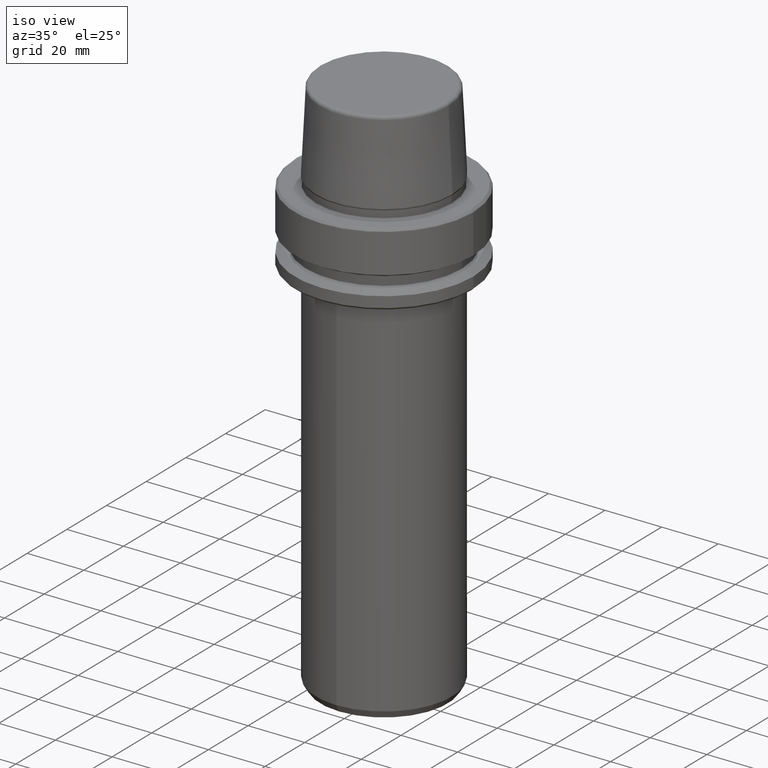
[diagram: clean part render]
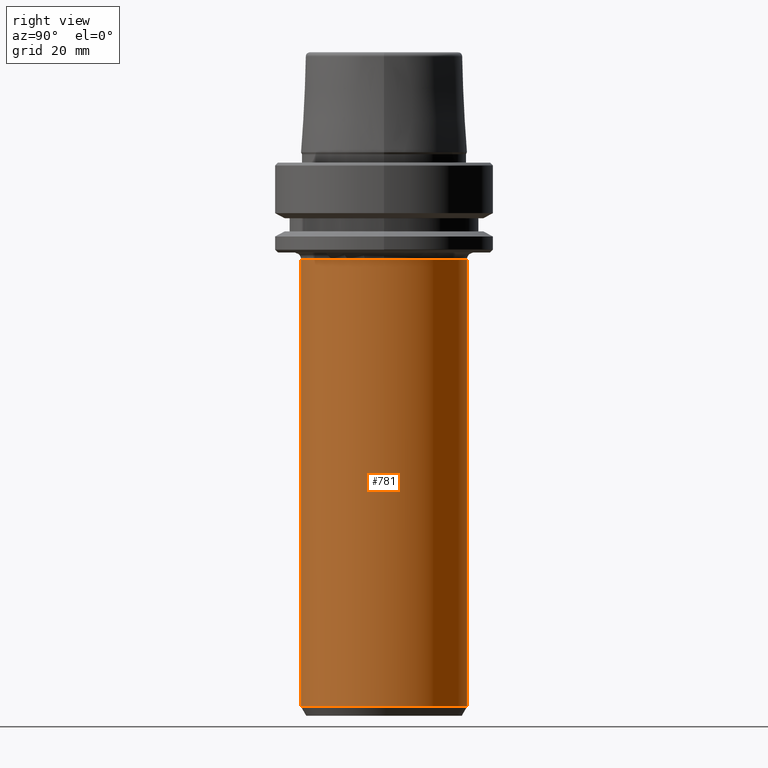
[diagram: tour spotlight — one face highlighted and labeled with its STEP entity id]
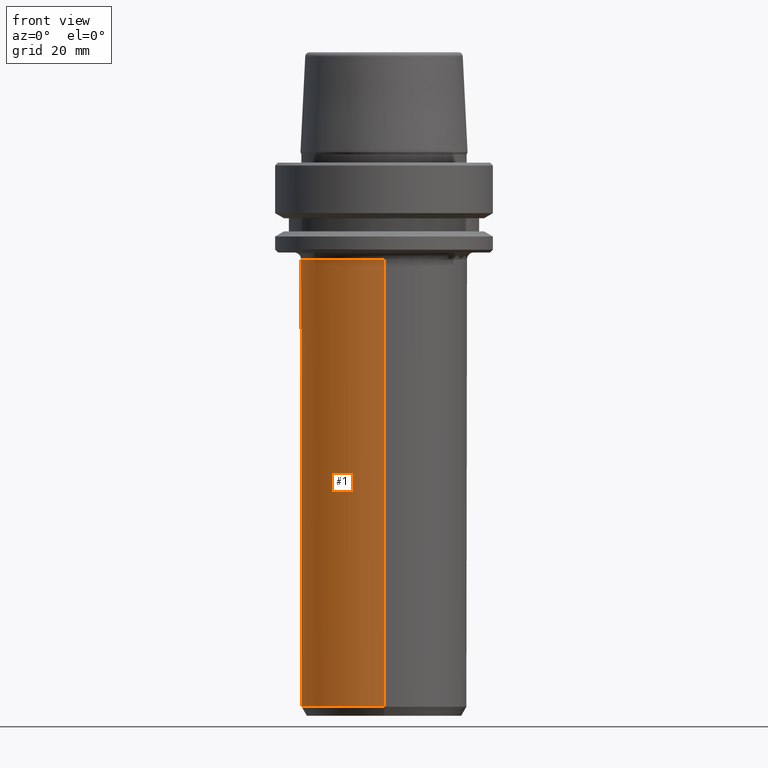
[diagram: tour spotlight — one face highlighted and labeled with its STEP entity id]
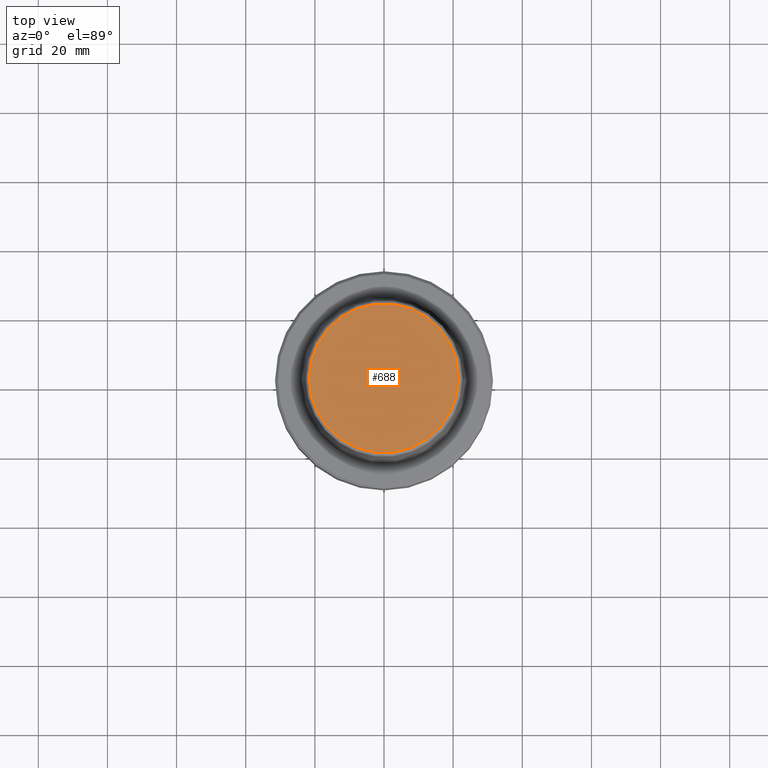
[diagram: tour spotlight — one face highlighted and labeled with its STEP entity id]
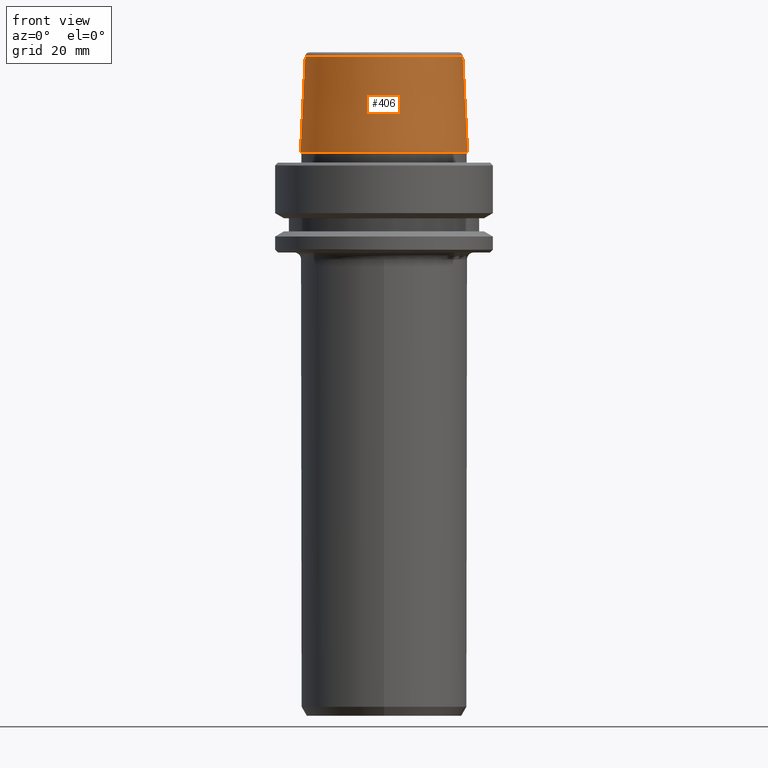
[diagram: tour spotlight — one face highlighted and labeled with its STEP entity id]
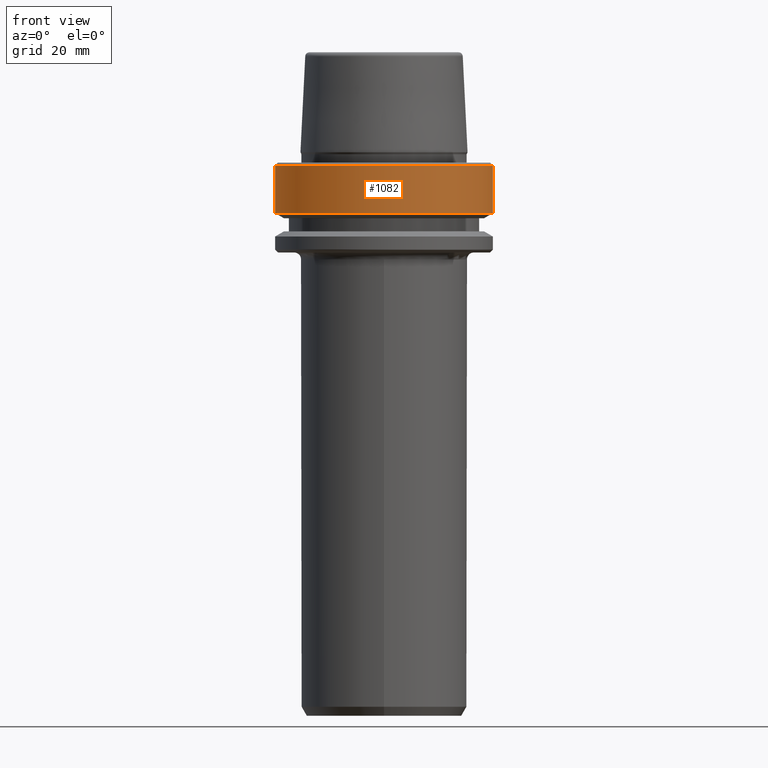
[diagram: tour spotlight — one face highlighted and labeled with its STEP entity id]
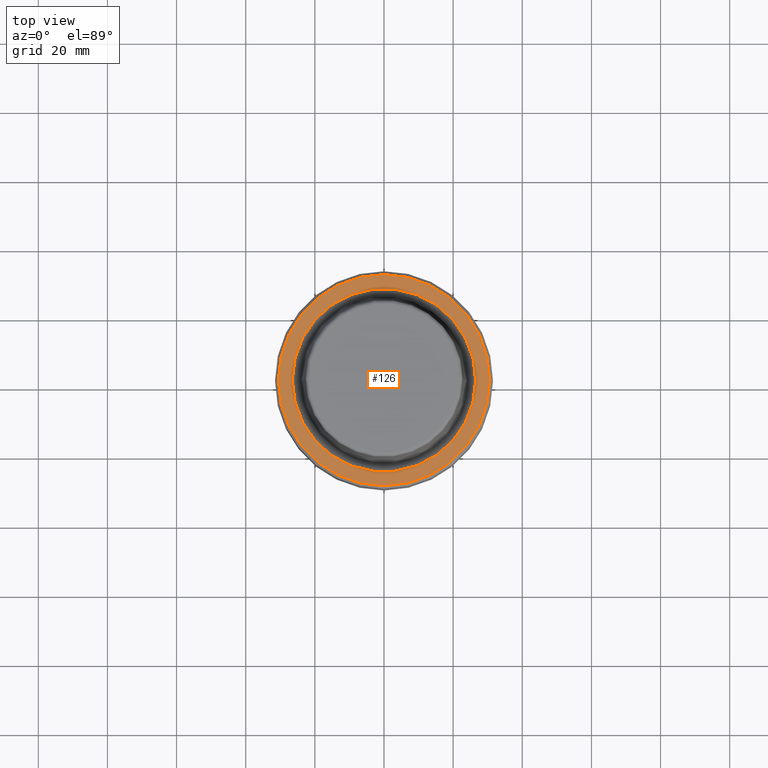
[diagram: tour spotlight — one face highlighted and labeled with its STEP entity id]
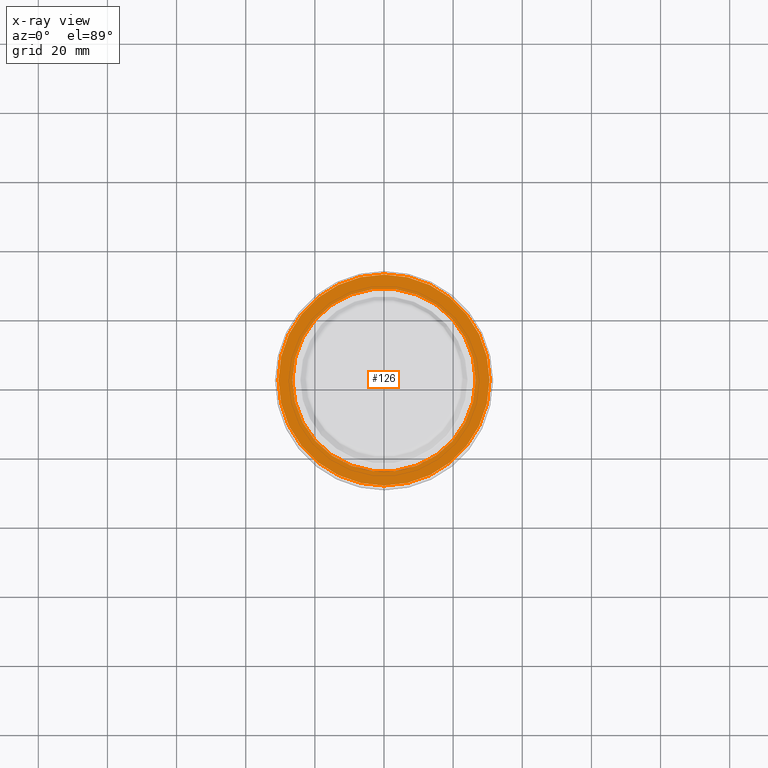
[diagram: x-ray of the same camera — body ghosted, this tour face saturated]
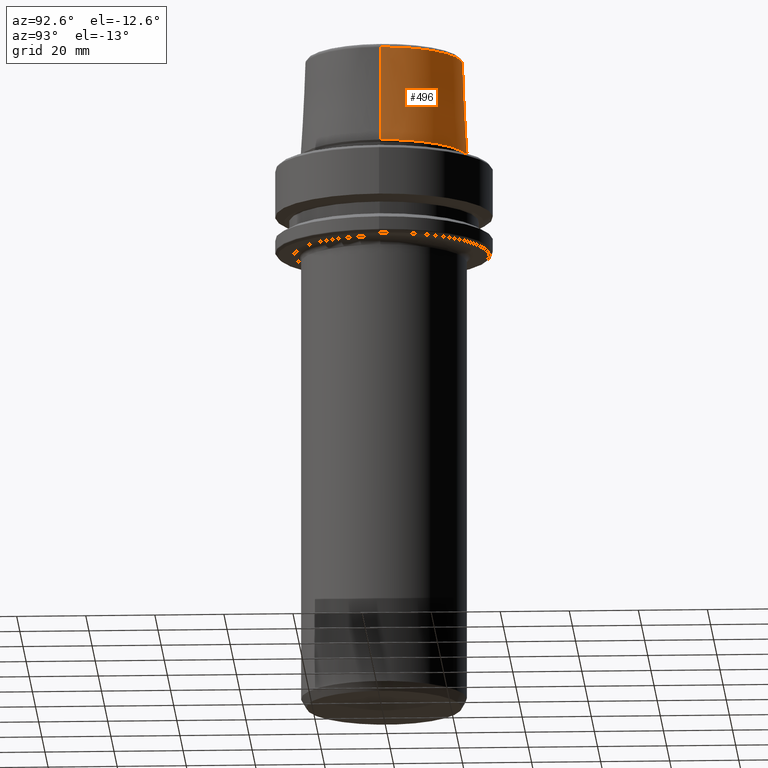
[diagram: tour spotlight — one face highlighted and labeled with its STEP entity id]
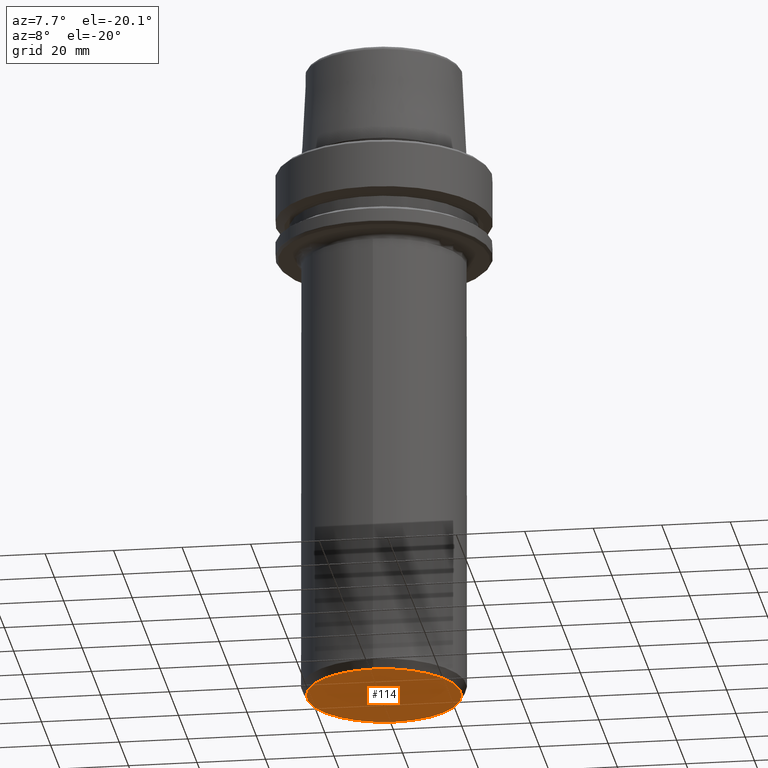
[diagram: tour spotlight — one face highlighted and labeled with its STEP entity id]
A machine part: a face-by-face anatomy tour. The part has 46 B-rep faces; the first image is the clean iso view, then the 8 largest visible faces are spotlighted one at a time (largest first), each with its STEP entity span.

Face 1 — right view, entity #781. In plain terms, the highlighted cylindrical surface (partial cylindrical patch) has radius 24 mm, axis along (-0, 0, -1).
Definition (entity closure, byte-faithful):
#23 = CYLINDRICAL_SURFACE ( 'NONE', #967, 24.00000000000000000 ) ;
#82 = EDGE_CURVE ( 'NONE', #167, #835, #1164, .T. ) ;
#150 = CARTESIAN_POINT ( 'NONE',  ( 0.0000000000000000000, 4.569577608758799000E-017, -27.99999999999999600 ) ) ;
#167 = VERTEX_POINT ( 'NONE', #551 ) ;
#171 = DIRECTION ( 'NONE',  ( 0.0000000000000000000, 1.000000000000000000, 0.0000000000000000000 ) ) ;
#187 = CARTESIAN_POINT ( 'NONE',  ( 24.00000000000000000, 4.569577608758799000E-017, -27.99999999999999600 ) ) ;
#271 = DIRECTION ( 'NONE',  ( 1.000000000000000000, 0.0000000000000000000, 0.0000000000000000000 ) ) ;
#278 = CIRCLE ( 'NONE', #346, 24.00000000000000000 ) ;
#336 = CIRCLE ( 'NONE', #809, 24.00000000000000000 ) ;
#346 = AXIS2_PLACEMENT_3D ( 'NONE', #502, #1006, #271 ) ;
#352 = CARTESIAN_POINT ( 'NONE',  ( 2.939152317953647900E-015, -23.99999999999999600, -160.0000000000000000 ) ) ;
#365 = EDGE_CURVE ( 'NONE', #625, #823, #336, .T. ) ;
#390 = LINE ( 'NONE', #352, #1143 ) ;
#412 = ORIENTED_EDGE ( 'NONE', *, *, #667, .T. ) ;
#432 = VECTOR ( 'NONE', #441, 1000.000000000000000 ) ;
#441 = DIRECTION ( 'NONE',  ( -0.0000000000000000000, 2.284788804379389600E-017, -1.000000000000000000 ) ) ;
#475 = ORIENTED_EDGE ( 'NONE', *, *, #820, .T. ) ;
#502 = CARTESIAN_POINT ( 'NONE',  ( 0.0000000000000000000, 4.569577608758799000E-017, -27.99999999999999600 ) ) ;
#551 = CARTESIAN_POINT ( 'NONE',  ( 2.939152317953647500E-015, 24.00000000000000000, -157.4019237886466800 ) ) ;
#603 = ORIENTED_EDGE ( 'NONE', *, *, #82, .F. ) ;
#625 = VERTEX_POINT ( 'NONE', #187 ) ;
#632 = CARTESIAN_POINT ( 'NONE',  ( 0.0000000000000000000, -23.99999999999999300, -157.4019237886466800 ) ) ;
#667 = EDGE_CURVE ( 'NONE', #1178, #625, #278, .T. ) ;
#671 = DIRECTION ( 'NONE',  ( 0.0000000000000000000, 1.000000000000000000, 0.0000000000000000000 ) ) ;
#684 = LINE ( 'NONE', #819, #432 ) ;
#693 = ORIENTED_EDGE ( 'NONE', *, *, #365, .T. ) ;
#714 = CARTESIAN_POINT ( 'NONE',  ( 0.0000000000000000000, 24.00000000000000000, -27.99999999999999600 ) ) ;
#721 = CARTESIAN_POINT ( 'NONE',  ( 2.939152317953647900E-015, -24.00000000000000000, -27.99999999999999600 ) ) ;
#733 = CARTESIAN_POINT ( 'NONE',  ( 0.0000000000000000000, 3.061616997868382300E-015, -160.0000000000000000 ) ) ;
#781 = ADVANCED_FACE ( 'NONE', ( #800 ), #23, .T. ) ;
#800 = FACE_OUTER_BOUND ( 'NONE', #1262, .T. ) ;
#809 = AXIS2_PLACEMENT_3D ( 'NONE', #150, #1033, #834 ) ;
#819 = CARTESIAN_POINT ( 'NONE',  ( 0.0000000000000000000, 24.00000000000000400, -160.0000000000000000 ) ) ;
#820 = EDGE_CURVE ( 'NONE', #823, #835, #390, .T. ) ;
#823 = VERTEX_POINT ( 'NONE', #721 ) ;
#834 = DIRECTION ( 'NONE',  ( 1.000000000000000000, 0.0000000000000000000, 0.0000000000000000000 ) ) ;
#835 = VERTEX_POINT ( 'NONE', #632 ) ;
#936 = ORIENTED_EDGE ( 'NONE', *, *, #1179, .F. ) ;
#940 = DIRECTION ( 'NONE',  ( -0.0000000000000000000, 2.284788804379389600E-017, -1.000000000000000000 ) ) ;
#967 = AXIS2_PLACEMENT_3D ( 'NONE', #733, #1142, #171 ) ;
#1006 = DIRECTION ( 'NONE',  ( 0.0000000000000000000, 0.0000000000000000000, -1.000000000000000000 ) ) ;
#1019 = DIRECTION ( 'NONE',  ( -0.0000000000000000000, 2.284788804379389600E-017, -1.000000000000000000 ) ) ;
#1033 = DIRECTION ( 'NONE',  ( 0.0000000000000000000, 0.0000000000000000000, -1.000000000000000000 ) ) ;
#1060 = CARTESIAN_POINT ( 'NONE',  ( 0.0000000000000000000, 3.002256443462137200E-015, -157.4019237886466800 ) ) ;
#1138 = AXIS2_PLACEMENT_3D ( 'NONE', #1060, #940, #671 ) ;
#1142 = DIRECTION ( 'NONE',  ( -0.0000000000000000000, 2.284788804379389600E-017, -1.000000000000000000 ) ) ;
#1143 = VECTOR ( 'NONE', #1019, 1000.000000000000000 ) ;
#1164 = CIRCLE ( 'NONE', #1138, 23.99999999999999600 ) ;
#1178 = VERTEX_POINT ( 'NONE', #714 ) ;
#1179 = EDGE_CURVE ( 'NONE', #1178, #167, #684, .T. ) ;
#1262 = EDGE_LOOP ( 'NONE', ( #412, #693, #475, #603, #936 ) ) ;

Face 2 — front view, entity #1. In plain terms, the highlighted cylindrical surface (partial cylindrical patch) has radius 24 mm, axis along (-0, 0, -1).
Definition (entity closure, byte-faithful):
#1 = ADVANCED_FACE ( 'NONE', ( #476 ), #206, .T. ) ;
#38 = AXIS2_PLACEMENT_3D ( 'NONE', #247, #912, #344 ) ;
#44 = DIRECTION ( 'NONE',  ( 0.0000000000000000000, 0.0000000000000000000, -1.000000000000000000 ) ) ;
#167 = VERTEX_POINT ( 'NONE', #551 ) ;
#169 = AXIS2_PLACEMENT_3D ( 'NONE', #757, #1113, #1209 ) ;
#206 = CYLINDRICAL_SURFACE ( 'NONE', #1036, 24.00000000000000000 ) ;
#226 = CIRCLE ( 'NONE', #38, 23.99999999999999600 ) ;
#247 = CARTESIAN_POINT ( 'NONE',  ( 0.0000000000000000000, 3.002256443462137200E-015, -157.4019237886466800 ) ) ;
#285 = AXIS2_PLACEMENT_3D ( 'NONE', #617, #44, #718 ) ;
#294 = ORIENTED_EDGE ( 'NONE', *, *, #1179, .T. ) ;
#344 = DIRECTION ( 'NONE',  ( 0.0000000000000000000, 1.000000000000000000, 0.0000000000000000000 ) ) ;
#352 = CARTESIAN_POINT ( 'NONE',  ( 2.939152317953647900E-015, -23.99999999999999600, -160.0000000000000000 ) ) ;
#378 = ORIENTED_EDGE ( 'NONE', *, *, #820, .F. ) ;
#390 = LINE ( 'NONE', #352, #1143 ) ;
#432 = VECTOR ( 'NONE', #441, 1000.000000000000000 ) ;
#441 = DIRECTION ( 'NONE',  ( -0.0000000000000000000, 2.284788804379389600E-017, -1.000000000000000000 ) ) ;
#446 = VERTEX_POINT ( 'NONE', #1013 ) ;
#466 = CIRCLE ( 'NONE', #285, 24.00000000000000000 ) ;
#476 = FACE_OUTER_BOUND ( 'NONE', #956, .T. ) ;
#551 = CARTESIAN_POINT ( 'NONE',  ( 2.939152317953647500E-015, 24.00000000000000000, -157.4019237886466800 ) ) ;
#552 = CIRCLE ( 'NONE', #169, 24.00000000000000000 ) ;
#617 = CARTESIAN_POINT ( 'NONE',  ( 0.0000000000000000000, 4.569577608758799000E-017, -27.99999999999999600 ) ) ;
#632 = CARTESIAN_POINT ( 'NONE',  ( 0.0000000000000000000, -23.99999999999999300, -157.4019237886466800 ) ) ;
#670 = EDGE_CURVE ( 'NONE', #446, #1178, #552, .T. ) ;
#678 = DIRECTION ( 'NONE',  ( -0.0000000000000000000, 2.284788804379389600E-017, -1.000000000000000000 ) ) ;
#684 = LINE ( 'NONE', #819, #432 ) ;
#687 = ORIENTED_EDGE ( 'NONE', *, *, #670, .T. ) ;
#714 = CARTESIAN_POINT ( 'NONE',  ( 0.0000000000000000000, 24.00000000000000000, -27.99999999999999600 ) ) ;
#718 = DIRECTION ( 'NONE',  ( 1.000000000000000000, 0.0000000000000000000, 0.0000000000000000000 ) ) ;
#721 = CARTESIAN_POINT ( 'NONE',  ( 2.939152317953647900E-015, -24.00000000000000000, -27.99999999999999600 ) ) ;
#757 = CARTESIAN_POINT ( 'NONE',  ( 0.0000000000000000000, 4.569577608758799000E-017, -27.99999999999999600 ) ) ;
#784 = DIRECTION ( 'NONE',  ( 0.0000000000000000000, 1.000000000000000000, 0.0000000000000000000 ) ) ;
#819 = CARTESIAN_POINT ( 'NONE',  ( 0.0000000000000000000, 24.00000000000000400, -160.0000000000000000 ) ) ;
#820 = EDGE_CURVE ( 'NONE', #823, #835, #390, .T. ) ;
#823 = VERTEX_POINT ( 'NONE', #721 ) ;
#835 = VERTEX_POINT ( 'NONE', #632 ) ;
#879 = CARTESIAN_POINT ( 'NONE',  ( 0.0000000000000000000, 3.061616997868382300E-015, -160.0000000000000000 ) ) ;
#912 = DIRECTION ( 'NONE',  ( -0.0000000000000000000, 2.284788804379389600E-017, -1.000000000000000000 ) ) ;
#930 = EDGE_CURVE ( 'NONE', #835, #167, #226, .T. ) ;
#956 = EDGE_LOOP ( 'NONE', ( #378, #1086, #687, #294, #1022 ) ) ;
#1013 = CARTESIAN_POINT ( 'NONE',  ( -24.00000000000000000, 3.107312773955971300E-015, -27.99999999999999600 ) ) ;
#1019 = DIRECTION ( 'NONE',  ( -0.0000000000000000000, 2.284788804379389600E-017, -1.000000000000000000 ) ) ;
#1022 = ORIENTED_EDGE ( 'NONE', *, *, #930, .F. ) ;
#1036 = AXIS2_PLACEMENT_3D ( 'NONE', #879, #678, #784 ) ;
#1086 = ORIENTED_EDGE ( 'NONE', *, *, #1170, .T. ) ;
#1113 = DIRECTION ( 'NONE',  ( 0.0000000000000000000, 0.0000000000000000000, -1.000000000000000000 ) ) ;
#1143 = VECTOR ( 'NONE', #1019, 1000.000000000000000 ) ;
#1170 = EDGE_CURVE ( 'NONE', #823, #446, #466, .T. ) ;
#1178 = VERTEX_POINT ( 'NONE', #714 ) ;
#1179 = EDGE_CURVE ( 'NONE', #1178, #167, #684, .T. ) ;
#1209 = DIRECTION ( 'NONE',  ( 1.000000000000000000, 0.0000000000000000000, 0.0000000000000000000 ) ) ;

Face 3 — top view, entity #688. In plain terms, the highlighted planar face has unit normal (0, 0, -1).
Definition (entity closure, byte-faithful):
#108 = ORIENTED_EDGE ( 'NONE', *, *, #1064, .T. ) ;
#115 = CARTESIAN_POINT ( 'NONE',  ( 0.0000000000000000000, 0.0000000000000000000, 31.89999999999999900 ) ) ;
#178 = EDGE_CURVE ( 'NONE', #467, #723, #952, .T. ) ;
#218 = FACE_OUTER_BOUND ( 'NONE', #1256, .T. ) ;
#309 = AXIS2_PLACEMENT_3D ( 'NONE', #457, #1145, #543 ) ;
#340 = PLANE ( 'NONE',  #776 ) ;
#349 = CARTESIAN_POINT ( 'NONE',  ( -21.58108272732117100, 2.716307157494421400E-015, 31.89999999999999900 ) ) ;
#431 = DIRECTION ( 'NONE',  ( -1.000000000000000000, 0.0000000000000000000, -0.0000000000000000000 ) ) ;
#457 = CARTESIAN_POINT ( 'NONE',  ( 0.0000000000000000000, 0.0000000000000000000, 31.89999999999999900 ) ) ;
#467 = VERTEX_POINT ( 'NONE', #349 ) ;
#533 = CARTESIAN_POINT ( 'NONE',  ( 21.58108272732117100, 0.0000000000000000000, 31.89999999999999900 ) ) ;
#543 = DIRECTION ( 'NONE',  ( 1.000000000000000000, 0.0000000000000000000, 0.0000000000000000000 ) ) ;
#610 = CARTESIAN_POINT ( 'NONE',  ( 0.0000000000000000000, 0.0000000000000000000, 31.89999999999999900 ) ) ;
#679 = ORIENTED_EDGE ( 'NONE', *, *, #178, .T. ) ;
#688 = ADVANCED_FACE ( 'NONE', ( #218 ), #340, .F. ) ;
#723 = VERTEX_POINT ( 'NONE', #533 ) ;
#774 = DIRECTION ( 'NONE',  ( 1.000000000000000000, 0.0000000000000000000, 0.0000000000000000000 ) ) ;
#776 = AXIS2_PLACEMENT_3D ( 'NONE', #610, #1010, #431 ) ;
#952 = CIRCLE ( 'NONE', #987, 21.58108272732117100 ) ;
#987 = AXIS2_PLACEMENT_3D ( 'NONE', #115, #1186, #774 ) ;
#1010 = DIRECTION ( 'NONE',  ( 0.0000000000000000000, 0.0000000000000000000, -1.000000000000000000 ) ) ;
#1064 = EDGE_CURVE ( 'NONE', #723, #467, #1177, .T. ) ;
#1145 = DIRECTION ( 'NONE',  ( -0.0000000000000000000, -0.0000000000000000000, 1.000000000000000000 ) ) ;
#1177 = CIRCLE ( 'NONE', #309, 21.58108272732117100 ) ;
#1186 = DIRECTION ( 'NONE',  ( -0.0000000000000000000, -0.0000000000000000000, 1.000000000000000000 ) ) ;
#1256 = EDGE_LOOP ( 'NONE', ( #108, #679 ) ) ;

Face 4 — front view, entity #406. In plain terms, the highlighted conical surface has half-angle 2.868 deg.
Definition (entity closure, byte-faithful):
#2 = CIRCLE ( 'NONE', #297, 22.77957961851797100 ) ;
#33 = FACE_OUTER_BOUND ( 'NONE', #989, .T. ) ;
#57 = CARTESIAN_POINT ( 'NONE',  ( 0.0000000000000000000, 0.0000000000000000000, 3.000000000000002700 ) ) ;
#117 = ORIENTED_EDGE ( 'NONE', *, *, #1095, .T. ) ;
#144 = DIRECTION ( 'NONE',  ( 0.05003611051310812000, 6.127656258166108900E-018, -0.9987474093306675200 ) ) ;
#297 = AXIS2_PLACEMENT_3D ( 'NONE', #512, #1217, #612 ) ;
#353 = VERTEX_POINT ( 'NONE', #577 ) ;
#355 = DIRECTION ( 'NONE',  ( -0.0000000000000000000, -0.0000000000000000000, 1.000000000000000000 ) ) ;
#363 = ORIENTED_EDGE ( 'NONE', *, *, #1131, .F. ) ;
#406 = ADVANCED_FACE ( 'NONE', ( #33 ), #1124, .T. ) ;
#422 = ORIENTED_EDGE ( 'NONE', *, *, #697, .T. ) ;
#507 = LINE ( 'NONE', #709, #806 ) ;
#508 = VERTEX_POINT ( 'NONE', #1264 ) ;
#512 = CARTESIAN_POINT ( 'NONE',  ( 0.0000000000000000000, 0.0000000000000000000, 30.76004333261571900 ) ) ;
#523 = DIRECTION ( 'NONE',  ( 0.0000000000000000000, 0.0000000000000000000, -1.000000000000000000 ) ) ;
#577 = CARTESIAN_POINT ( 'NONE',  ( -22.77957961851797100, 0.0000000000000000000, 30.76004333261571900 ) ) ;
#612 = DIRECTION ( 'NONE',  ( 1.000000000000000000, 0.0000000000000000000, 0.0000000000000000000 ) ) ;
#697 = EDGE_CURVE ( 'NONE', #707, #508, #1043, .T. ) ;
#707 = VERTEX_POINT ( 'NONE', #928 ) ;
#709 = CARTESIAN_POINT ( 'NONE',  ( 24.17032625081241900, 2.960011267740467600E-015, 3.000000000000002700 ) ) ;
#720 = CARTESIAN_POINT ( 'NONE',  ( 22.77957961851797100, 2.874852597157249900E-015, 30.76004333261571900 ) ) ;
#743 = VECTOR ( 'NONE', #1210, 1000.000000000000200 ) ;
#765 = AXIS2_PLACEMENT_3D ( 'NONE', #924, #355, #1020 ) ;
#779 = LINE ( 'NONE', #804, #743 ) ;
#804 = CARTESIAN_POINT ( 'NONE',  ( -24.17032625081241900, 0.0000000000000000000, 3.000000000000002700 ) ) ;
#806 = VECTOR ( 'NONE', #144, 1000.000000000000200 ) ;
#924 = CARTESIAN_POINT ( 'NONE',  ( 0.0000000000000000000, 0.0000000000000000000, 3.000000000000002700 ) ) ;
#928 = CARTESIAN_POINT ( 'NONE',  ( -24.17032625081241900, 2.960011267740467600E-015, 3.000000000000002700 ) ) ;
#950 = ORIENTED_EDGE ( 'NONE', *, *, #1155, .F. ) ;
#962 = VERTEX_POINT ( 'NONE', #720 ) ;
#989 = EDGE_LOOP ( 'NONE', ( #363, #950, #117, #422 ) ) ;
#1020 = DIRECTION ( 'NONE',  ( 1.000000000000000000, 0.0000000000000000000, 0.0000000000000000000 ) ) ;
#1043 = CIRCLE ( 'NONE', #765, 24.17032625081241900 ) ;
#1085 = AXIS2_PLACEMENT_3D ( 'NONE', #57, #523, #1218 ) ;
#1095 = EDGE_CURVE ( 'NONE', #353, #707, #779, .T. ) ;
#1124 = CONICAL_SURFACE ( 'NONE', #1085, 24.17032625081241900, 0.05005701257456005000 ) ;
#1131 = EDGE_CURVE ( 'NONE', #962, #508, #507, .T. ) ;
#1155 = EDGE_CURVE ( 'NONE', #353, #962, #2, .T. ) ;
#1210 = DIRECTION ( 'NONE',  ( -0.05003611051310812000, 0.0000000000000000000, -0.9987474093306675200 ) ) ;
#1217 = DIRECTION ( 'NONE',  ( -0.0000000000000000000, -0.0000000000000000000, 1.000000000000000000 ) ) ;
#1218 = DIRECTION ( 'NONE',  ( -1.000000000000000000, 0.0000000000000000000, 0.0000000000000000000 ) ) ;
#1264 = CARTESIAN_POINT ( 'NONE',  ( 24.17032625081241900, 0.0000000000000000000, 3.000000000000002700 ) ) ;

Face 5 — front view, entity #1082. In plain terms, the highlighted cylindrical surface (partial cylindrical patch) has radius 31.5 mm, axis along (-0, -0, 1).
Definition (entity closure, byte-faithful):
#43 = VECTOR ( 'NONE', #1133, 1000.000000000000000 ) ;
#85 = AXIS2_PLACEMENT_3D ( 'NONE', #735, #174, #836 ) ;
#110 = FACE_OUTER_BOUND ( 'NONE', #274, .T. ) ;
#130 = CIRCLE ( 'NONE', #161, 31.50000000000000000 ) ;
#161 = AXIS2_PLACEMENT_3D ( 'NONE', #832, #265, #933 ) ;
#174 = DIRECTION ( 'NONE',  ( -0.0000000000000000000, -0.0000000000000000000, 1.000000000000000000 ) ) ;
#175 = VECTOR ( 'NONE', #239, 1000.000000000000000 ) ;
#239 = DIRECTION ( 'NONE',  ( -0.0000000000000000000, -0.0000000000000000000, 1.000000000000000000 ) ) ;
#259 = CARTESIAN_POINT ( 'NONE',  ( 31.50000000000000000, 0.0000000000000000000, 78.96908074195309300 ) ) ;
#265 = DIRECTION ( 'NONE',  ( -0.0000000000000000000, -0.0000000000000000000, 1.000000000000000000 ) ) ;
#268 = VERTEX_POINT ( 'NONE', #689 ) ;
#274 = EDGE_LOOP ( 'NONE', ( #388, #638, #1175, #594 ) ) ;
#298 = AXIS2_PLACEMENT_3D ( 'NONE', #938, #646, #728 ) ;
#311 = LINE ( 'NONE', #259, #43 ) ;
#388 = ORIENTED_EDGE ( 'NONE', *, *, #947, .F. ) ;
#410 = VERTEX_POINT ( 'NONE', #429 ) ;
#429 = CARTESIAN_POINT ( 'NONE',  ( 31.50000000000000700, 0.0000000000000000000, -0.9656854249492363700 ) ) ;
#437 = CARTESIAN_POINT ( 'NONE',  ( -31.50000000000000000, 3.857637417314162700E-015, 78.96908074195309300 ) ) ;
#505 = VERTEX_POINT ( 'NONE', #677 ) ;
#550 = VERTEX_POINT ( 'NONE', #855 ) ;
#594 = ORIENTED_EDGE ( 'NONE', *, *, #846, .F. ) ;
#638 = ORIENTED_EDGE ( 'NONE', *, *, #706, .T. ) ;
#646 = DIRECTION ( 'NONE',  ( -0.0000000000000000000, -0.0000000000000000000, 1.000000000000000000 ) ) ;
#672 = LINE ( 'NONE', #437, #175 ) ;
#677 = CARTESIAN_POINT ( 'NONE',  ( -31.50000000000000700, 3.857637417314163500E-015, -0.9656854249492363700 ) ) ;
#689 = CARTESIAN_POINT ( 'NONE',  ( 31.50000000000000000, 0.0000000000000000000, -14.62250092524070100 ) ) ;
#706 = EDGE_CURVE ( 'NONE', #550, #268, #130, .T. ) ;
#728 = DIRECTION ( 'NONE',  ( 1.000000000000000000, 0.0000000000000000000, 0.0000000000000000000 ) ) ;
#735 = CARTESIAN_POINT ( 'NONE',  ( 0.0000000000000000000, 0.0000000000000000000, -0.9656854249492363700 ) ) ;
#832 = CARTESIAN_POINT ( 'NONE',  ( 0.0000000000000000000, 0.0000000000000000000, -14.62250092524070100 ) ) ;
#836 = DIRECTION ( 'NONE',  ( 1.000000000000000000, 0.0000000000000000000, 0.0000000000000000000 ) ) ;
#837 = EDGE_CURVE ( 'NONE', #268, #410, #311, .T. ) ;
#846 = EDGE_CURVE ( 'NONE', #505, #410, #1208, .T. ) ;
#855 = CARTESIAN_POINT ( 'NONE',  ( -31.50000000000000000, 3.857637417314162700E-015, -14.62250092524070100 ) ) ;
#933 = DIRECTION ( 'NONE',  ( 1.000000000000000000, 0.0000000000000000000, 0.0000000000000000000 ) ) ;
#938 = CARTESIAN_POINT ( 'NONE',  ( 0.0000000000000000000, 0.0000000000000000000, 78.96908074195309300 ) ) ;
#947 = EDGE_CURVE ( 'NONE', #550, #505, #672, .T. ) ;
#1038 = CYLINDRICAL_SURFACE ( 'NONE', #298, 31.50000000000000000 ) ;
#1082 = ADVANCED_FACE ( 'NONE', ( #110 ), #1038, .T. ) ;
#1133 = DIRECTION ( 'NONE',  ( -0.0000000000000000000, -0.0000000000000000000, 1.000000000000000000 ) ) ;
#1175 = ORIENTED_EDGE ( 'NONE', *, *, #837, .T. ) ;
#1208 = CIRCLE ( 'NONE', #85, 31.50000000000000700 ) ;

Face 6 — top view, entity #126. An x-ray twin of the same camera follows (body ghosted, this face saturated) — the face is partly hidden behind the body. In plain terms, the highlighted planar face has unit normal (0, 0, -1).
Definition (entity closure, byte-faithful):
#5 = DIRECTION ( 'NONE',  ( 0.0000000000000000000, 0.0000000000000000000, -1.000000000000000000 ) ) ;
#65 = VERTEX_POINT ( 'NONE', #181 ) ;
#78 = DIRECTION ( 'NONE',  ( 1.000000000000000000, 0.0000000000000000000, 0.0000000000000000000 ) ) ;
#105 = AXIS2_PLACEMENT_3D ( 'NONE', #439, #624, #78 ) ;
#122 = CIRCLE ( 'NONE', #264, 30.53431457505076100 ) ;
#124 = ORIENTED_EDGE ( 'NONE', *, *, #859, .F. ) ;
#126 = ADVANCED_FACE ( 'NONE', ( #647, #1204 ), #869, .F. ) ;
#136 = CIRCLE ( 'NONE', #1057, 26.52499999999999900 ) ;
#152 = CARTESIAN_POINT ( 'NONE',  ( -30.53431457505076100, 3.756694181974138600E-015, 0.0000000000000000000 ) ) ;
#157 = EDGE_LOOP ( 'NONE', ( #216, #510 ) ) ;
#181 = CARTESIAN_POINT ( 'NONE',  ( 30.53431457505076100, 0.0000000000000000000, 0.0000000000000000000 ) ) ;
#216 = ORIENTED_EDGE ( 'NONE', *, *, #1205, .T. ) ;
#264 = AXIS2_PLACEMENT_3D ( 'NONE', #535, #1240, #1253 ) ;
#329 = AXIS2_PLACEMENT_3D ( 'NONE', #367, #1031, #458 ) ;
#331 = ORIENTED_EDGE ( 'NONE', *, *, #802, .F. ) ;
#343 = CARTESIAN_POINT ( 'NONE',  ( 26.52499999999999900, 0.0000000000000000000, 0.0000000000000000000 ) ) ;
#367 = CARTESIAN_POINT ( 'NONE',  ( 0.0000000000000000000, 0.0000000000000000000, 0.0000000000000000000 ) ) ;
#439 = CARTESIAN_POINT ( 'NONE',  ( 0.0000000000000000000, 0.0000000000000000000, 0.0000000000000000000 ) ) ;
#444 = CARTESIAN_POINT ( 'NONE',  ( 0.0000000000000000000, 0.0000000000000000000, 0.0000000000000000000 ) ) ;
#458 = DIRECTION ( 'NONE',  ( 1.000000000000000000, 0.0000000000000000000, 0.0000000000000000000 ) ) ;
#487 = DIRECTION ( 'NONE',  ( -1.000000000000000000, 0.0000000000000000000, -0.0000000000000000000 ) ) ;
#510 = ORIENTED_EDGE ( 'NONE', *, *, #604, .T. ) ;
#525 = DIRECTION ( 'NONE',  ( 1.000000000000000000, 0.0000000000000000000, 0.0000000000000000000 ) ) ;
#535 = CARTESIAN_POINT ( 'NONE',  ( 0.0000000000000000000, 0.0000000000000000000, 0.0000000000000000000 ) ) ;
#591 = VERTEX_POINT ( 'NONE', #343 ) ;
#604 = EDGE_CURVE ( 'NONE', #699, #65, #732, .T. ) ;
#624 = DIRECTION ( 'NONE',  ( -0.0000000000000000000, -0.0000000000000000000, 1.000000000000000000 ) ) ;
#647 = FACE_BOUND ( 'NONE', #917, .T. ) ;
#699 = VERTEX_POINT ( 'NONE', #152 ) ;
#712 = VERTEX_POINT ( 'NONE', #1135 ) ;
#732 = CIRCLE ( 'NONE', #105, 30.53431457505076100 ) ;
#801 = CIRCLE ( 'NONE', #329, 26.52499999999999900 ) ;
#802 = EDGE_CURVE ( 'NONE', #712, #591, #136, .T. ) ;
#859 = EDGE_CURVE ( 'NONE', #591, #712, #801, .T. ) ;
#869 = PLANE ( 'NONE',  #983 ) ;
#917 = EDGE_LOOP ( 'NONE', ( #124, #331 ) ) ;
#983 = AXIS2_PLACEMENT_3D ( 'NONE', #1069, #5, #487 ) ;
#1031 = DIRECTION ( 'NONE',  ( -0.0000000000000000000, -0.0000000000000000000, 1.000000000000000000 ) ) ;
#1057 = AXIS2_PLACEMENT_3D ( 'NONE', #444, #1126, #525 ) ;
#1069 = CARTESIAN_POINT ( 'NONE',  ( 0.0000000000000000000, 26.52499999999999900, -1.111307226797642000E-015 ) ) ;
#1126 = DIRECTION ( 'NONE',  ( -0.0000000000000000000, -0.0000000000000000000, 1.000000000000000000 ) ) ;
#1135 = CARTESIAN_POINT ( 'NONE',  ( -26.52499999999999900, 3.248375634738354300E-015, 0.0000000000000000000 ) ) ;
#1204 = FACE_OUTER_BOUND ( 'NONE', #157, .T. ) ;
#1205 = EDGE_CURVE ( 'NONE', #65, #699, #122, .T. ) ;
#1240 = DIRECTION ( 'NONE',  ( -0.0000000000000000000, -0.0000000000000000000, 1.000000000000000000 ) ) ;
#1253 = DIRECTION ( 'NONE',  ( 1.000000000000000000, 0.0000000000000000000, 0.0000000000000000000 ) ) ;

Face 7 — auxiliary view, entity #496. In plain terms, the highlighted conical surface has half-angle 2.868 deg.
Definition (entity closure, byte-faithful):
#40 = DIRECTION ( 'NONE',  ( 1.000000000000000000, 0.0000000000000000000, 0.0000000000000000000 ) ) ;
#47 = AXIS2_PLACEMENT_3D ( 'NONE', #62, #734, #172 ) ;
#53 = ORIENTED_EDGE ( 'NONE', *, *, #1005, .F. ) ;
#62 = CARTESIAN_POINT ( 'NONE',  ( 0.0000000000000000000, 0.0000000000000000000, 30.76004333261571900 ) ) ;
#69 = ORIENTED_EDGE ( 'NONE', *, *, #910, .T. ) ;
#144 = DIRECTION ( 'NONE',  ( 0.05003611051310812000, 6.127656258166108900E-018, -0.9987474093306675200 ) ) ;
#172 = DIRECTION ( 'NONE',  ( 1.000000000000000000, 0.0000000000000000000, 0.0000000000000000000 ) ) ;
#199 = AXIS2_PLACEMENT_3D ( 'NONE', #207, #1279, #293 ) ;
#207 = CARTESIAN_POINT ( 'NONE',  ( 0.0000000000000000000, 0.0000000000000000000, 3.000000000000002700 ) ) ;
#231 = ORIENTED_EDGE ( 'NONE', *, *, #1095, .F. ) ;
#293 = DIRECTION ( 'NONE',  ( -1.000000000000000000, 0.0000000000000000000, 0.0000000000000000000 ) ) ;
#310 = AXIS2_PLACEMENT_3D ( 'NONE', #1220, #615, #40 ) ;
#353 = VERTEX_POINT ( 'NONE', #577 ) ;
#496 = ADVANCED_FACE ( 'NONE', ( #1189 ), #858, .T. ) ;
#507 = LINE ( 'NONE', #709, #806 ) ;
#508 = VERTEX_POINT ( 'NONE', #1264 ) ;
#577 = CARTESIAN_POINT ( 'NONE',  ( -22.77957961851797100, 0.0000000000000000000, 30.76004333261571900 ) ) ;
#602 = CIRCLE ( 'NONE', #47, 22.77957961851797100 ) ;
#615 = DIRECTION ( 'NONE',  ( -0.0000000000000000000, -0.0000000000000000000, 1.000000000000000000 ) ) ;
#707 = VERTEX_POINT ( 'NONE', #928 ) ;
#709 = CARTESIAN_POINT ( 'NONE',  ( 24.17032625081241900, 2.960011267740467600E-015, 3.000000000000002700 ) ) ;
#720 = CARTESIAN_POINT ( 'NONE',  ( 22.77957961851797100, 2.874852597157249900E-015, 30.76004333261571900 ) ) ;
#734 = DIRECTION ( 'NONE',  ( -0.0000000000000000000, -0.0000000000000000000, 1.000000000000000000 ) ) ;
#743 = VECTOR ( 'NONE', #1210, 1000.000000000000200 ) ;
#755 = EDGE_LOOP ( 'NONE', ( #53, #870, #69, #231 ) ) ;
#779 = LINE ( 'NONE', #804, #743 ) ;
#804 = CARTESIAN_POINT ( 'NONE',  ( -24.17032625081241900, 0.0000000000000000000, 3.000000000000002700 ) ) ;
#806 = VECTOR ( 'NONE', #144, 1000.000000000000200 ) ;
#858 = CONICAL_SURFACE ( 'NONE', #199, 24.17032625081241900, 0.05005701257456005000 ) ;
#870 = ORIENTED_EDGE ( 'NONE', *, *, #1131, .T. ) ;
#910 = EDGE_CURVE ( 'NONE', #508, #707, #1201, .T. ) ;
#928 = CARTESIAN_POINT ( 'NONE',  ( -24.17032625081241900, 2.960011267740467600E-015, 3.000000000000002700 ) ) ;
#962 = VERTEX_POINT ( 'NONE', #720 ) ;
#1005 = EDGE_CURVE ( 'NONE', #962, #353, #602, .T. ) ;
#1095 = EDGE_CURVE ( 'NONE', #353, #707, #779, .T. ) ;
#1131 = EDGE_CURVE ( 'NONE', #962, #508, #507, .T. ) ;
#1189 = FACE_OUTER_BOUND ( 'NONE', #755, .T. ) ;
#1201 = CIRCLE ( 'NONE', #310, 24.17032625081241900 ) ;
#1210 = DIRECTION ( 'NONE',  ( -0.05003611051310812000, 0.0000000000000000000, -0.9987474093306675200 ) ) ;
#1220 = CARTESIAN_POINT ( 'NONE',  ( 0.0000000000000000000, 0.0000000000000000000, 3.000000000000002700 ) ) ;
#1264 = CARTESIAN_POINT ( 'NONE',  ( 24.17032625081241900, 0.0000000000000000000, 3.000000000000002700 ) ) ;
#1279 = DIRECTION ( 'NONE',  ( 0.0000000000000000000, 0.0000000000000000000, -1.000000000000000000 ) ) ;

Face 8 — auxiliary view, entity #114. In plain terms, the highlighted planar face has unit normal (-0, 0, -1).
Definition (entity closure, byte-faithful):
#97 = AXIS2_PLACEMENT_3D ( 'NONE', #151, #1213, #760 ) ;
#103 = DIRECTION ( 'NONE',  ( -0.0000000000000000000, 2.284788804379389600E-017, -1.000000000000000000 ) ) ;
#106 = AXIS2_PLACEMENT_3D ( 'NONE', #389, #103, #739 ) ;
#114 = ADVANCED_FACE ( 'NONE', ( #1004 ), #478, .T. ) ;
#151 = CARTESIAN_POINT ( 'NONE',  ( 0.0000000000000000000, 3.061616997868382300E-015, -160.0000000000000000 ) ) ;
#360 = CARTESIAN_POINT ( 'NONE',  ( 0.0000000000000000000, 3.061616997868382300E-015, -160.0000000000000000 ) ) ;
#389 = CARTESIAN_POINT ( 'NONE',  ( 0.0000000000000000000, 22.50000000000000000, -160.0000000000000000 ) ) ;
#449 = DIRECTION ( 'NONE',  ( 0.0000000000000000000, 1.000000000000000000, 0.0000000000000000000 ) ) ;
#469 = CIRCLE ( 'NONE', #97, 22.49999999999999600 ) ;
#474 = ORIENTED_EDGE ( 'NONE', *, *, #703, .T. ) ;
#478 = PLANE ( 'NONE',  #106 ) ;
#595 = CIRCLE ( 'NONE', #758, 22.49999999999999600 ) ;
#639 = EDGE_CURVE ( 'NONE', #1268, #825, #469, .T. ) ;
#703 = EDGE_CURVE ( 'NONE', #825, #1268, #595, .T. ) ;
#739 = DIRECTION ( 'NONE',  ( 0.0000000000000000000, 1.000000000000000000, 2.284788804379389600E-017 ) ) ;
#758 = AXIS2_PLACEMENT_3D ( 'NONE', #360, #1026, #449 ) ;
#760 = DIRECTION ( 'NONE',  ( 0.0000000000000000000, 1.000000000000000000, 0.0000000000000000000 ) ) ;
#825 = VERTEX_POINT ( 'NONE', #1232 ) ;
#852 = EDGE_LOOP ( 'NONE', ( #913, #474 ) ) ;
#913 = ORIENTED_EDGE ( 'NONE', *, *, #639, .T. ) ;
#1004 = FACE_OUTER_BOUND ( 'NONE', #852, .T. ) ;
#1026 = DIRECTION ( 'NONE',  ( -0.0000000000000000000, 2.284788804379389600E-017, -1.000000000000000000 ) ) ;
#1041 = CARTESIAN_POINT ( 'NONE',  ( 0.0000000000000000000, -22.49999999999999300, -160.0000000000000000 ) ) ;
#1213 = DIRECTION ( 'NONE',  ( -0.0000000000000000000, 2.284788804379389600E-017, -1.000000000000000000 ) ) ;
#1232 = CARTESIAN_POINT ( 'NONE',  ( 2.847303808017595700E-015, 22.50000000000000000, -160.0000000000000000 ) ) ;
#1268 = VERTEX_POINT ( 'NONE', #1041 ) ;